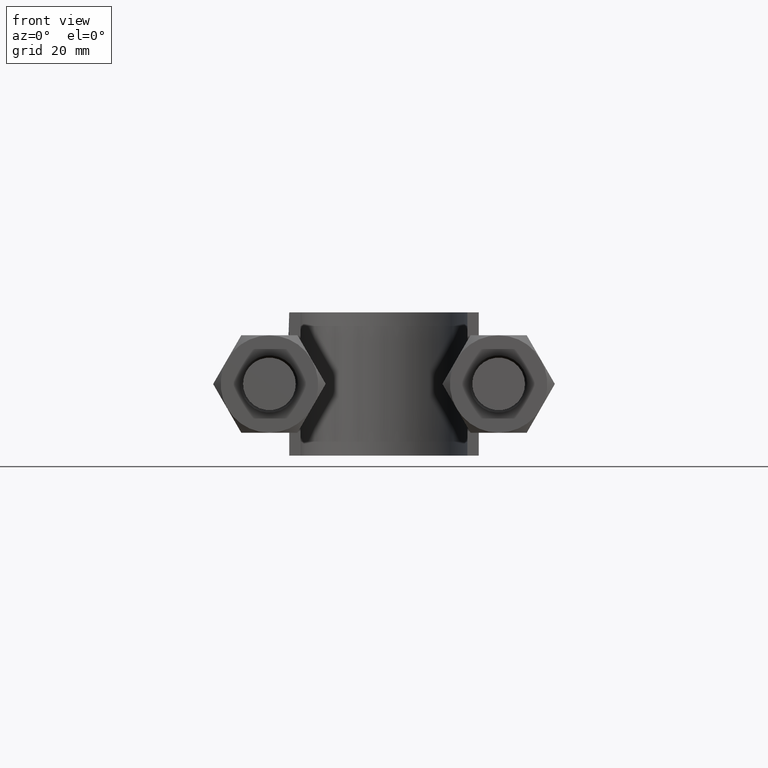
[diagram: clean part render]
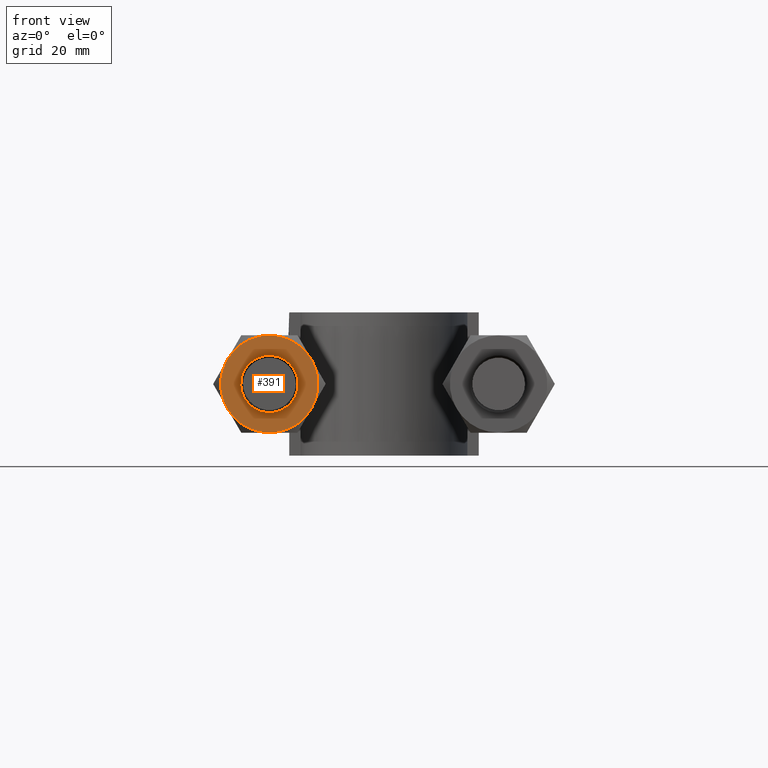
[diagram: same view with one face highlighted and labeled with its STEP entity id]
A machine part, front view. The second image highlights one B-rep face of the part: STEP entity #391.
In plain terms, the highlighted planar face has unit normal (0, 1, 0).
Its self-contained STEP definition (entity closure, byte-faithful):
#391 = ADVANCED_FACE( '', ( #501, #502 ), #503, .F. );
#501 = FACE_OUTER_BOUND( '', #1479, .T. );
#502 = FACE_BOUND( '', #1480, .T. );
#503 = PLANE( '', #1481 );
#1479 = EDGE_LOOP( '', ( #1744, #1745, #1746, #1747, #1748, #1749 ) );
#1480 = EDGE_LOOP( '', ( #1750 ) );
#1481 = AXIS2_PLACEMENT_3D( '', #1751, #1752, #1753 );
#1744 = ORIENTED_EDGE( '', *, *, #2123, .F. );
#1745 = ORIENTED_EDGE( '', *, *, #2124, .F. );
#1746 = ORIENTED_EDGE( '', *, *, #2125, .F. );
#1747 = ORIENTED_EDGE( '', *, *, #2126, .F. );
#1748 = ORIENTED_EDGE( '', *, *, #2121, .F. );
#1749 = ORIENTED_EDGE( '', *, *, #2127, .F. );
#1750 = ORIENTED_EDGE( '', *, *, #2128, .T. );
#1751 = CARTESIAN_POINT( '', ( -20.0000000000000, 20.0000000000000, 1.26318145396778E-015 ) );
#1752 = DIRECTION( '', ( 4.89842541528951E-016, 1.00000000000000, 6.12303176911189E-017 ) );
#1753 = DIRECTION( '', ( -0.866025403784439, 4.54831243663965E-016, -0.500000000000000 ) );
#2121 = EDGE_CURVE( '', #2287, #2289, #2290, .T. );
#2123 = EDGE_CURVE( '', #2292, #2293, #2294, .T. );
#2124 = EDGE_CURVE( '', #2295, #2292, #2296, .T. );
#2125 = EDGE_CURVE( '', #2297, #2295, #2298, .T. );
#2126 = EDGE_CURVE( '', #2289, #2297, #2299, .T. );
#2127 = EDGE_CURVE( '', #2293, #2287, #2300, .T. );
#2128 = EDGE_CURVE( '', #2301, #2301, #2302, .T. );
#2287 = VERTEX_POINT( '', #2694 );
#2289 = VERTEX_POINT( '', #2701 );
#2290 = CIRCLE( '', #2702, 8.50000000000000 );
#2292 = VERTEX_POINT( '', #2711 );
#2293 = VERTEX_POINT( '', #2712 );
#2294 = CIRCLE( '', #2713, 8.50000000000000 );
#2295 = VERTEX_POINT( '', #2714 );
#2296 = CIRCLE( '', #2715, 8.50000000000000 );
#2297 = VERTEX_POINT( '', #2716 );
#2298 = CIRCLE( '', #2717, 8.50000000000000 );
#2299 = CIRCLE( '', #2718, 8.50000000000000 );
#2300 = CIRCLE( '', #2719, 8.50000000000000 );
#2301 = VERTEX_POINT( '', #2720 );
#2302 = CIRCLE( '', #2721, 5.00000000000000 );
#2694 = CARTESIAN_POINT( '', ( -12.6387840678323, 20.0000000000000, 4.25000000000000 ) );
#2701 = CARTESIAN_POINT( '', ( -12.6387840678323, 20.0000000000000, -4.25000000000000 ) );
#2702 = AXIS2_PLACEMENT_3D( '', #3086, #3087, #3088 );
#2711 = CARTESIAN_POINT( '', ( -27.3612159321677, 20.0000000000000, 4.25000000000000 ) );
#2712 = CARTESIAN_POINT( '', ( -20.0000000000000, 20.0000000000000, 8.50000000000000 ) );
#2713 = AXIS2_PLACEMENT_3D( '', #3089, #3090, #3091 );
#2714 = CARTESIAN_POINT( '', ( -27.3612159321677, 20.0000000000000, -4.25000000000000 ) );
#2715 = AXIS2_PLACEMENT_3D( '', #3092, #3093, #3094 );
#2716 = CARTESIAN_POINT( '', ( -20.0000000000000, 20.0000000000000, -8.50000000000000 ) );
#2717 = AXIS2_PLACEMENT_3D( '', #3095, #3096, #3097 );
#2718 = AXIS2_PLACEMENT_3D( '', #3098, #3099, #3100 );
#2719 = AXIS2_PLACEMENT_3D( '', #3101, #3102, #3103 );
#2720 = CARTESIAN_POINT( '', ( -24.3301270189222, 20.0000000000000, -2.50000000000000 ) );
#2721 = AXIS2_PLACEMENT_3D( '', #3104, #3105, #3106 );
#3086 = CARTESIAN_POINT( '', ( -20.0000000000000, 20.0000000000000, 1.26318145396778E-015 ) );
#3087 = DIRECTION( '', ( 4.89842541528951E-016, 1.00000000000000, 6.12303176911188E-017 ) );
#3088 = DIRECTION( '', ( -0.866025403784439, 4.54831243663965E-016, -0.500000000000000 ) );
#3089 = CARTESIAN_POINT( '', ( -20.0000000000000, 20.0000000000000, 1.26318145396778E-015 ) );
#3090 = DIRECTION( '', ( 4.89842541528951E-016, 1.00000000000000, 6.12303176911188E-017 ) );
#3091 = DIRECTION( '', ( -0.866025403784439, 4.54831243663965E-016, -0.500000000000000 ) );
#3092 = CARTESIAN_POINT( '', ( -20.0000000000000, 20.0000000000000, 1.26318145396778E-015 ) );
#3093 = DIRECTION( '', ( 4.89842541528951E-016, 1.00000000000000, 6.12303176911188E-017 ) );
#3094 = DIRECTION( '', ( -0.866025403784439, 4.54831243663965E-016, -0.500000000000000 ) );
#3095 = CARTESIAN_POINT( '', ( -20.0000000000000, 20.0000000000000, 1.26318145396778E-015 ) );
#3096 = DIRECTION( '', ( 4.89842541528951E-016, 1.00000000000000, 6.12303176911188E-017 ) );
#3097 = DIRECTION( '', ( -0.866025403784439, 4.54831243663965E-016, -0.500000000000000 ) );
#3098 = CARTESIAN_POINT( '', ( -20.0000000000000, 20.0000000000000, 1.26318145396778E-015 ) );
#3099 = DIRECTION( '', ( 4.89842541528951E-016, 1.00000000000000, 6.12303176911188E-017 ) );
#3100 = DIRECTION( '', ( -0.866025403784439, 4.54831243663965E-016, -0.500000000000000 ) );
#3101 = CARTESIAN_POINT( '', ( -20.0000000000000, 20.0000000000000, 1.26318145396778E-015 ) );
#3102 = DIRECTION( '', ( 4.89842541528951E-016, 1.00000000000000, 6.12303176911188E-017 ) );
#3103 = DIRECTION( '', ( -0.866025403784439, 4.54831243663965E-016, -0.500000000000000 ) );
#3104 = CARTESIAN_POINT( '', ( -20.0000000000000, 20.0000000000000, 1.26318145396778E-015 ) );
#3105 = DIRECTION( '', ( 4.89842541528951E-016, 1.00000000000000, 6.12303176911189E-017 ) );
#3106 = DIRECTION( '', ( -0.866025403784439, 4.54831243663965E-016, -0.500000000000000 ) );